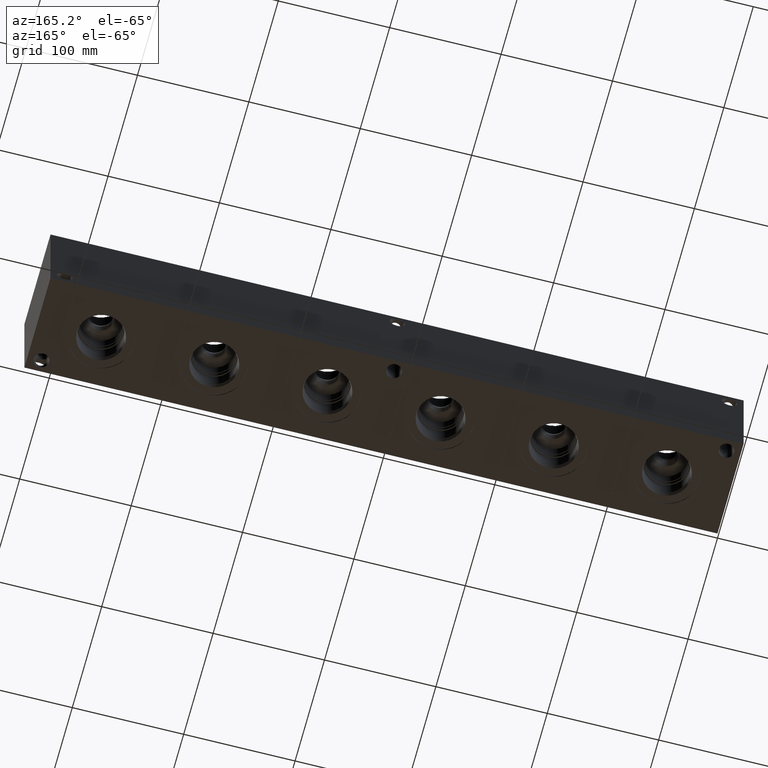
[diagram: clean part render]
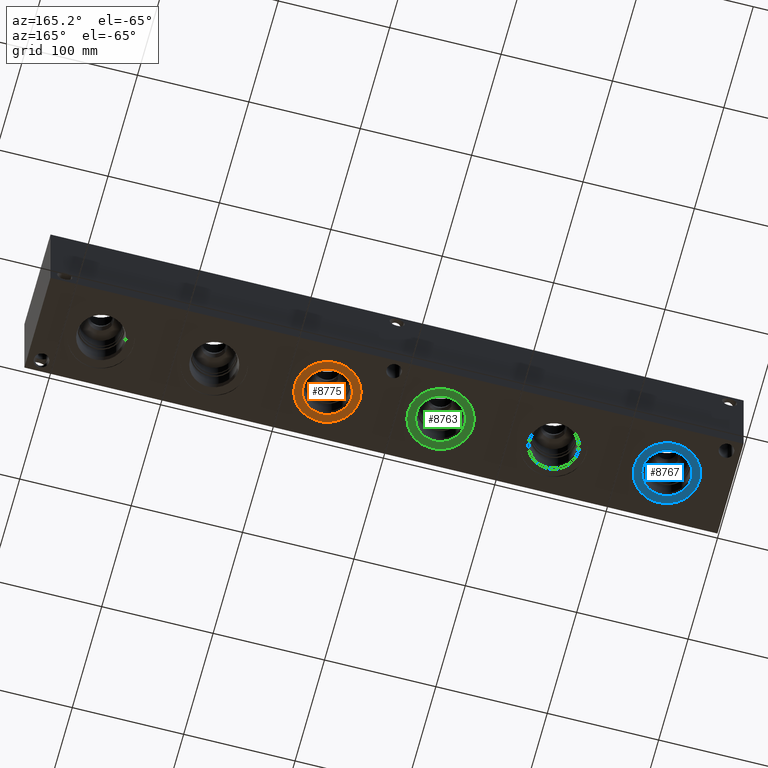
[diagram: same view with three faces highlighted in distinct colors, each labeled with its STEP entity id]
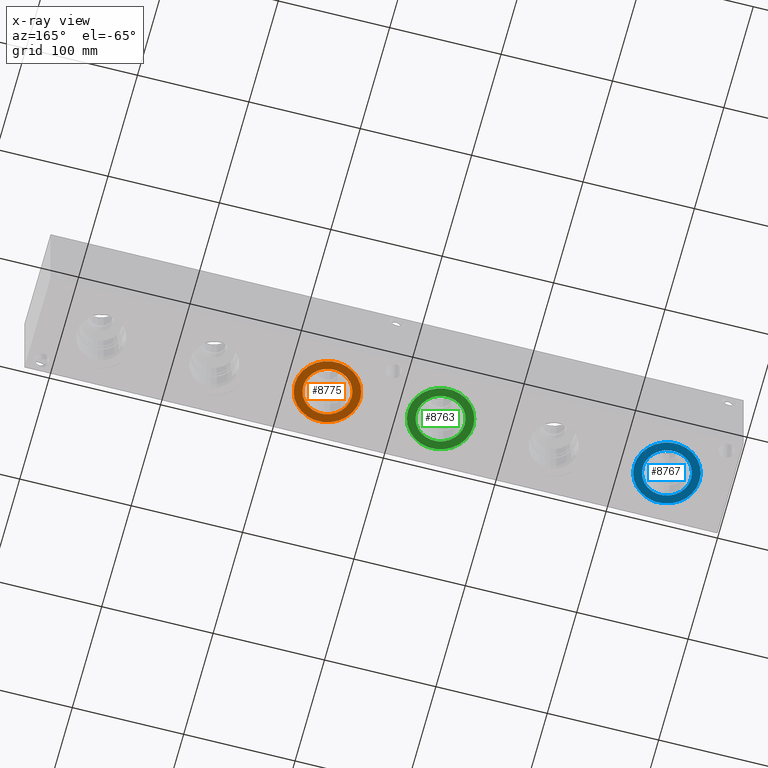
[diagram: x-ray of the same camera — body ghosted, the three highlighted faces saturated]
A machine part, auxiliary view with three faces highlighted in distinct colors.
The next image is the same camera in x-ray (body ghosted, the three faces saturated) — at least one of them is partly hidden behind the body in this view.
Their STEP definitions:

[orange] entity #8775 — the highlighted planar face has unit normal (0, 0, -1).
#273=CIRCLE('',#9279,29.2862);
#274=CIRCLE('',#9280,29.2862);
#275=CIRCLE('',#9281,21.7551);
#423=FACE_BOUND('',#1696,.T.);
#1183=FACE_OUTER_BOUND('',#1695,.T.);
#1695=EDGE_LOOP('',(#7463,#7464));
#1696=EDGE_LOOP('',(#7465));
#4040=VERTEX_POINT('',#15068);
#4041=VERTEX_POINT('',#15069);
#4042=VERTEX_POINT('',#15072);
#5212=EDGE_CURVE('',#4040,#4041,#273,.T.);
#5213=EDGE_CURVE('',#4041,#4040,#274,.T.);
#5214=EDGE_CURVE('',#4042,#4042,#275,.T.);
#7463=ORIENTED_EDGE('',*,*,#5212,.T.);
#7464=ORIENTED_EDGE('',*,*,#5213,.T.);
#7465=ORIENTED_EDGE('',*,*,#5214,.F.);
#8062=PLANE('',#9278);
#8775=ADVANCED_FACE('',(#1183,#423),#8062,.T.);
#9278=AXIS2_PLACEMENT_3D('',#15067,#10978,#10979);
#9279=AXIS2_PLACEMENT_3D('',#15070,#10980,#10981);
#9280=AXIS2_PLACEMENT_3D('',#15071,#10982,#10983);
#9281=AXIS2_PLACEMENT_3D('',#15073,#10984,#10985);
#10978=DIRECTION('center_axis',(0.,0.,-1.));
#10979=DIRECTION('ref_axis',(1.,0.,0.));
#10980=DIRECTION('center_axis',(0.,0.,-1.));
#10981=DIRECTION('ref_axis',(1.,0.,0.));
#10982=DIRECTION('center_axis',(0.,0.,-1.));
#10983=DIRECTION('ref_axis',(1.,0.,0.));
#10984=DIRECTION('center_axis',(0.,0.,-1.));
#10985=DIRECTION('ref_axis',(1.,0.,0.));
#15067=CARTESIAN_POINT('Origin',(361.95,44.45,0.7874));
#15068=CARTESIAN_POINT('',(391.2362,44.45,0.7874));
#15069=CARTESIAN_POINT('',(332.6638,44.45,0.7874));
#15070=CARTESIAN_POINT('Origin',(361.95,44.45,0.7874));
#15071=CARTESIAN_POINT('Origin',(361.95,44.45,0.7874));
#15072=CARTESIAN_POINT('',(340.1949,44.45,0.7874));
#15073=CARTESIAN_POINT('Origin',(361.95,44.45,0.7874));

[blue] entity #8767 — the highlighted planar face has unit normal (0, 0, -1).
#261=CIRCLE('',#9259,29.2862);
#262=CIRCLE('',#9260,29.2862);
#263=CIRCLE('',#9261,21.7551);
#421=FACE_BOUND('',#1686,.T.);
#1175=FACE_OUTER_BOUND('',#1685,.T.);
#1685=EDGE_LOOP('',(#7427,#7428));
#1686=EDGE_LOOP('',(#7429));
#4028=VERTEX_POINT('',#15030);
#4029=VERTEX_POINT('',#15031);
#4030=VERTEX_POINT('',#15034);
#5194=EDGE_CURVE('',#4028,#4029,#261,.T.);
#5195=EDGE_CURVE('',#4029,#4028,#262,.T.);
#5196=EDGE_CURVE('',#4030,#4030,#263,.T.);
#7427=ORIENTED_EDGE('',*,*,#5194,.T.);
#7428=ORIENTED_EDGE('',*,*,#5195,.T.);
#7429=ORIENTED_EDGE('',*,*,#5196,.F.);
#8060=PLANE('',#9258);
#8767=ADVANCED_FACE('',(#1175,#421),#8060,.T.);
#9258=AXIS2_PLACEMENT_3D('',#15029,#10932,#10933);
#9259=AXIS2_PLACEMENT_3D('',#15032,#10934,#10935);
#9260=AXIS2_PLACEMENT_3D('',#15033,#10936,#10937);
#9261=AXIS2_PLACEMENT_3D('',#15035,#10938,#10939);
#10932=DIRECTION('center_axis',(0.,0.,-1.));
#10933=DIRECTION('ref_axis',(1.,0.,0.));
#10934=DIRECTION('center_axis',(0.,0.,-1.));
#10935=DIRECTION('ref_axis',(1.,0.,0.));
#10936=DIRECTION('center_axis',(0.,0.,-1.));
#10937=DIRECTION('ref_axis',(1.,0.,0.));
#10938=DIRECTION('center_axis',(0.,0.,-1.));
#10939=DIRECTION('ref_axis',(1.,0.,0.));
#15029=CARTESIAN_POINT('Origin',(57.15,44.45,0.7874));
#15030=CARTESIAN_POINT('',(86.4362,44.45,0.7874));
#15031=CARTESIAN_POINT('',(27.8638,44.45,0.7874));
#15032=CARTESIAN_POINT('Origin',(57.15,44.45,0.7874));
#15033=CARTESIAN_POINT('Origin',(57.15,44.45,0.7874));
#15034=CARTESIAN_POINT('',(35.3949,44.45,0.7874));
#15035=CARTESIAN_POINT('Origin',(57.15,44.45,0.7874));

[green] entity #8763 — the highlighted planar face has unit normal (0, 0, -1).
#255=CIRCLE('',#9249,29.2862);
#256=CIRCLE('',#9250,29.2862);
#257=CIRCLE('',#9251,21.7551);
#420=FACE_BOUND('',#1681,.T.);
#1171=FACE_OUTER_BOUND('',#1680,.T.);
#1680=EDGE_LOOP('',(#7409,#7410));
#1681=EDGE_LOOP('',(#7411));
#4022=VERTEX_POINT('',#15011);
#4023=VERTEX_POINT('',#15012);
#4024=VERTEX_POINT('',#15015);
#5185=EDGE_CURVE('',#4022,#4023,#255,.T.);
#5186=EDGE_CURVE('',#4023,#4022,#256,.T.);
#5187=EDGE_CURVE('',#4024,#4024,#257,.T.);
#7409=ORIENTED_EDGE('',*,*,#5185,.T.);
#7410=ORIENTED_EDGE('',*,*,#5186,.T.);
#7411=ORIENTED_EDGE('',*,*,#5187,.F.);
#8059=PLANE('',#9248);
#8763=ADVANCED_FACE('',(#1171,#420),#8059,.T.);
#9248=AXIS2_PLACEMENT_3D('',#15010,#10909,#10910);
#9249=AXIS2_PLACEMENT_3D('',#15013,#10911,#10912);
#9250=AXIS2_PLACEMENT_3D('',#15014,#10913,#10914);
#9251=AXIS2_PLACEMENT_3D('',#15016,#10915,#10916);
#10909=DIRECTION('center_axis',(0.,0.,-1.));
#10910=DIRECTION('ref_axis',(1.,0.,0.));
#10911=DIRECTION('center_axis',(0.,0.,-1.));
#10912=DIRECTION('ref_axis',(1.,0.,0.));
#10913=DIRECTION('center_axis',(0.,0.,-1.));
#10914=DIRECTION('ref_axis',(1.,0.,0.));
#10915=DIRECTION('center_axis',(0.,0.,-1.));
#10916=DIRECTION('ref_axis',(1.,0.,0.));
#15010=CARTESIAN_POINT('Origin',(260.35,44.45,0.7874));
#15011=CARTESIAN_POINT('',(289.6362,44.45,0.7874));
#15012=CARTESIAN_POINT('',(231.0638,44.45,0.7874));
#15013=CARTESIAN_POINT('Origin',(260.35,44.45,0.7874));
#15014=CARTESIAN_POINT('Origin',(260.35,44.45,0.7874));
#15015=CARTESIAN_POINT('',(238.5949,44.45,0.7874));
#15016=CARTESIAN_POINT('Origin',(260.35,44.45,0.7874));